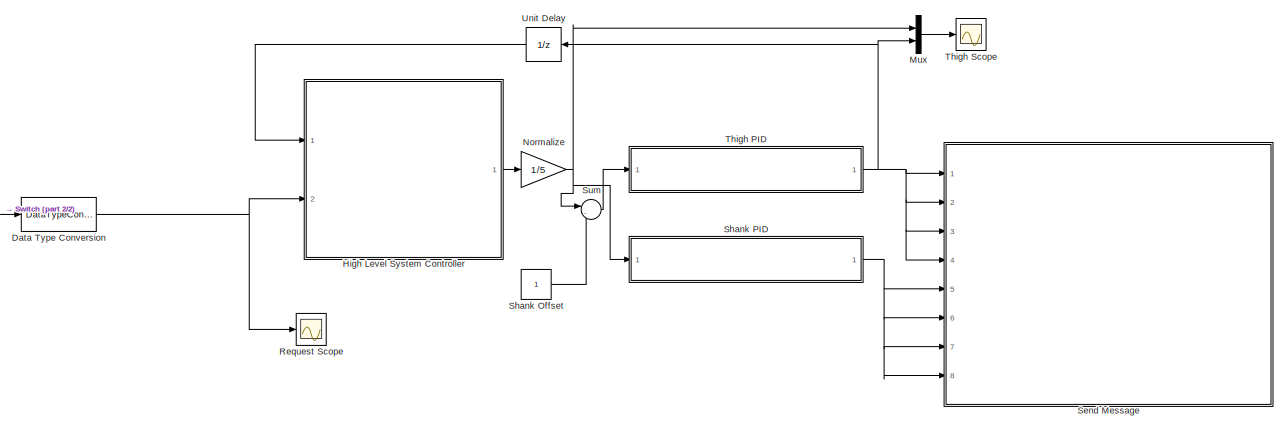
[diagram: root canvas - part 1/2, most of the canvas]
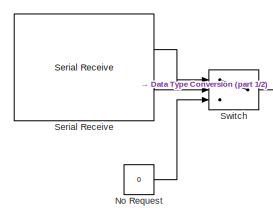
[diagram: root canvas - part 2/2, middle left region]
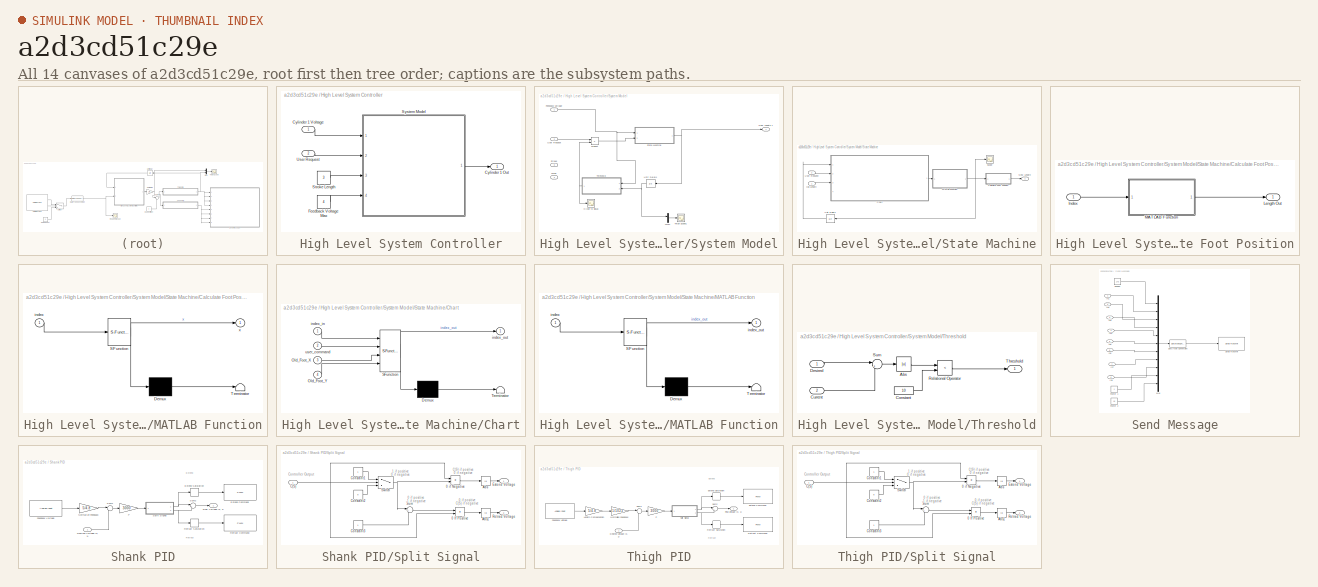
[diagram: thumbnail index - all 14 canvases of the model, root first then tree order]
MODEL slx_a2d3cd51c29e
KIND model
BLOCK [DataTypeConversion] Data Type Conversion
  RndMeth = Floor
BLOCK [SubSystem] High Level System Controller
  Ports = [2, 1]
  RequestExecContextInheritance = off
BLOCK [Outport] High Level System Controller/Cylinder 1 Out
  IconDisplay = Port number
BLOCK [Inport] High Level System Controller/Cylinder 1 Voltage
  IconDisplay = Port number
  OutDataTypeStr = double
BLOCK [Constant] High Level System Controller/Feedback Voltage Max
  Value = 4
BLOCK [Constant] High Level System Controller/Stroke Length
  Value = 3
BLOCK [SubSystem] High Level System Controller/System Model
  Ports = [4, 1]
  RequestExecContextInheritance = off
BLOCK [Scope] High Level System Controller/System Model/Close to Equal
  Floating = off
  LimitDataPoints = off
  NumInputPorts = 1
  Ports = [1]
  SaveName = ScopeData5
  ShowLegends = off
  TimeRange = 1
  YMax = 2.8
  YMin = 2.53334
  ZoomMode = xonly
BLOCK [Inport] High Level System Controller/System Model/Feedback Voltage
  IconDisplay = Port number
BLOCK [Mux] High Level System Controller/System Model/Mux1
  DisplayOption = bar
  Inputs = 2
  Ports = [2, 1]
BLOCK [Outport] High Level System Controller/System Model/New Length 1
  IconDisplay = Port number
  OutDataTypeStr = double
BLOCK [Product] High Level System Controller/System Model/Product
  InputSameDT = off
  OutDataTypeStr = Inherit: Inherit via internal rule
  Ports = [2, 1]
  RndMeth = Floor
  SaturateOnIntegerOverflow = off
BLOCK [SubSystem] High Level System Controller/System Model/State Machine
  Ports = [2, 1]
  RequestExecContextInheritance = off
BLOCK [SubSystem] High Level System Controller/System Model/State Machine/Calculate Foot Position
  Ports = [1, 1]
  RequestExecContextInheritance = off
BLOCK [Inport] High Level System Controller/System Model/State Machine/Calculate Foot Position/Index
  IconDisplay = Port number
BLOCK [Outport] High Level System Controller/System Model/State Machine/Calculate Foot Position/Length Out
  IconDisplay = Port number
BLOCK [SubSystem] High Level System Controller/System Model/State Machine/Calculate Foot Position/MATLAB Function
  ErrorFcn = Stateflow.Translate.translate
  PermitHierarchicalResolution = ExplicitOnly
  Ports = [1, 1]
  RequestExecContextInheritance = off
  SFBlockType = MATLAB Function
  TreatAsAtomicUnit = on
BLOCK [Demux] High Level System Controller/System Model/State Machine/Calculate Foot Position/MATLAB Function/ Demux 
  Outputs = 1
  Ports = [1, 1]
BLOCK [S-Function] High Level System Controller/System Model/State Machine/Calculate Foot Position/MATLAB Function/ SFunction 
  EnableBusSupport = on
  FunctionName = sf_sfun
  PortCounts = [1 2]
  Ports = [1, 2]
  Tag = Stateflow S-Function DesignShowModel 1
BLOCK [Terminator] High Level System Controller/System Model/State Machine/Calculate Foot Position/MATLAB Function/ Terminator 
BLOCK [Inport] High Level System Controller/System Model/State Machine/Calculate Foot Position/MATLAB Function/index
  IconDisplay = Port number
BLOCK [Outport] High Level System Controller/System Model/State Machine/Calculate Foot Position/MATLAB Function/x
  IconDisplay = Port number
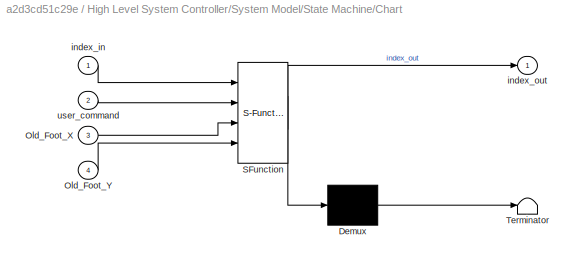
BLOCK [SubSystem] High Level System Controller/System Model/State Machine/Chart
  ErrorFcn = Stateflow.Translate.translate
  PermitHierarchicalResolution = ExplicitOnly
  Ports = [4, 1]
  RequestExecContextInheritance = off
  SFBlockType = Chart
  TreatAsAtomicUnit = on
BLOCK [Demux] High Level System Controller/System Model/State Machine/Chart/ Demux 
  Outputs = 1
  Ports = [1, 1]
BLOCK [S-Function] High Level System Controller/System Model/State Machine/Chart/ SFunction 
  EnableBusSupport = on
  FunctionName = sf_sfun
  PortCounts = [4 2]
  Ports = [4, 2]
  Tag = Stateflow S-Function DesignShowModel 3
BLOCK [Terminator] High Level System Controller/System Model/State Machine/Chart/ Terminator 
BLOCK [Inport] High Level System Controller/System Model/State Machine/Chart/Old_Foot_X
  IconDisplay = Port number
  Port = 3
BLOCK [Inport] High Level System Controller/System Model/State Machine/Chart/Old_Foot_Y
  IconDisplay = Port number
  Port = 4
BLOCK [Inport] High Level System Controller/System Model/State Machine/Chart/index_in
  IconDisplay = Port number
BLOCK [Outport] High Level System Controller/System Model/State Machine/Chart/index_out
  IconDisplay = Port number
BLOCK [Inport] High Level System Controller/System Model/State Machine/Chart/user_command
  IconDisplay = Port number
  Port = 2
BLOCK [SubSystem] High Level System Controller/System Model/State Machine/MATLAB Function
  ErrorFcn = Stateflow.Translate.translate
  PermitHierarchicalResolution = ExplicitOnly
  Ports = [1, 1]
  RequestExecContextInheritance = off
  SFBlockType = MATLAB Function
  TreatAsAtomicUnit = on
BLOCK [Demux] High Level System Controller/System Model/State Machine/MATLAB Function/ Demux 
  Outputs = 1
  Ports = [1, 1]
BLOCK [S-Function] High Level System Controller/System Model/State Machine/MATLAB Function/ SFunction 
  EnableBusSupport = on
  FunctionName = sf_sfun
  PortCounts = [1 2]
  Ports = [1, 2]
  Tag = Stateflow S-Function DesignShowModel 4
BLOCK [Terminator] High Level System Controller/System Model/State Machine/MATLAB Function/ Terminator 
BLOCK [Inport] High Level System Controller/System Model/State Machine/MATLAB Function/index
  IconDisplay = Port number
BLOCK [Outport] High Level System Controller/System Model/State Machine/MATLAB Function/index_out
  IconDisplay = Port number
BLOCK [Outport] High Level System Controller/System Model/State Machine/New Length
  IconDisplay = Port number
BLOCK [Inport] High Level System Controller/System Model/State Machine/Old Length
  IconDisplay = Port number
BLOCK [Scope] High Level System Controller/System Model/State Machine/Scope
  DataFormat = StructureWithTime
  Floating = off
  LimitDataPoints = off
  NumInputPorts = 1
  Ports = [1]
  SampleTime = 0
  SaveName = ScopeData2
  ShowLegends = off
BLOCK [UnitDelay] High Level System Controller/System Model/State Machine/Unit Delay1
  InputProcessing = Elements as channels (sample based)
  SampleTime = -1
BLOCK [Inport] High Level System Controller/System Model/State Machine/User Request
  IconDisplay = Port number
  Port = 2
BLOCK [Inport] High Level System Controller/System Model/Stroke
  IconDisplay = Port number
  Port = 3
BLOCK [Scope] High Level System Controller/System Model/Thigh Scope1
  Floating = off
  LimitDataPoints = off
  NumInputPorts = 1
  Ports = [1]
  SaveName = ScopeData4
  ShowLegends = off
  TimeRange = 1
  YMax = 2.8
  YMin = 2.53334
  ZoomMode = xonly
BLOCK [SubSystem] High Level System Controller/System Model/Threshold
  Ports = [2, 1]
  RequestExecContextInheritance = off
BLOCK [Abs] High Level System Controller/System Model/Threshold/Abs
  SaturateOnIntegerOverflow = off
BLOCK [Constant] High Level System Controller/System Model/Threshold/Constant
  Value = 10
BLOCK [Inport] High Level System Controller/System Model/Threshold/Current
  IconDisplay = Port number
  Port = 2
BLOCK [Inport] High Level System Controller/System Model/Threshold/Desired
  IconDisplay = Port number
BLOCK [RelationalOperator] High Level System Controller/System Model/Threshold/Relational Operator
  InputSameDT = off
  Operator = <
  OutDataTypeStr = boolean
  Ports = [2, 1]
BLOCK [Sum] High Level System Controller/System Model/Threshold/Sum
  IconShape = round
  InputSameDT = off
  Inputs = |+-
  OutDataTypeStr = Inherit: Inherit via internal rule
  Ports = [2, 1]
  SaturateOnIntegerOverflow = off
BLOCK [Outport] High Level System Controller/System Model/Threshold/Threshold
  IconDisplay = Port number
BLOCK [UnitDelay] High Level System Controller/System Model/Unit Delay1
  InputProcessing = Elements as channels (sample based)
  SampleTime = -1
BLOCK [Inport] High Level System Controller/System Model/User Request
  IconDisplay = Port number
  Port = 2
BLOCK [Inport] High Level System Controller/System Model/vMax
  IconDisplay = Port number
  Port = 4
BLOCK [Inport] High Level System Controller/User Request
  IconDisplay = Port number
  Port = 2
BLOCK [Mux] Mux
  DisplayOption = bar
  Inputs = 2
  Ports = [2, 1]
BLOCK [Constant] No Request
  Value = 0
BLOCK [Gain] Normalize
  Gain = 1/5
  OutDataTypeStr = Inherit: Inherit via internal rule
  ParamDataTypeStr = Inherit: Inherit via internal rule
  SaturateOnIntegerOverflow = off
BLOCK [Scope] Request Scope
  Floating = off
  LimitDataPoints = off
  NumInputPorts = 1
  Ports = [1]
  SaveName = ScopeData1
  ShowLegends = off
  TimeRange = 1
  YMax = 1.05
  YMin = 0.95
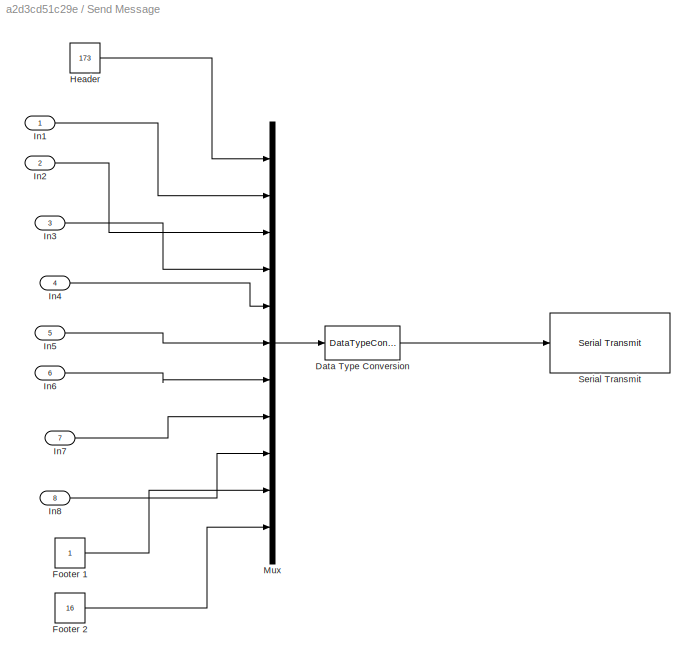
BLOCK [SubSystem] Send Message
  Ports = [8]
  RequestExecContextInheritance = off
BLOCK [DataTypeConversion] Send Message/Data Type Conversion
  RndMeth = Floor
BLOCK [Constant] Send Message/Footer 1
BLOCK [Constant] Send Message/Footer 2
  Value = 16
BLOCK [Constant] Send Message/Header
  Value = 173
BLOCK [Inport] Send Message/In1
  IconDisplay = Port number
BLOCK [Inport] Send Message/In2
  IconDisplay = Port number
  Port = 2
BLOCK [Inport] Send Message/In3
  IconDisplay = Port number
  Port = 3
BLOCK [Inport] Send Message/In4
  IconDisplay = Port number
  Port = 4
BLOCK [Inport] Send Message/In5
  IconDisplay = Port number
  Port = 5
BLOCK [Inport] Send Message/In6
  IconDisplay = Port number
  Port = 6
BLOCK [Inport] Send Message/In7
  IconDisplay = Port number
  Port = 7
BLOCK [Inport] Send Message/In8
  IconDisplay = Port number
  Port = 8
BLOCK [Mux] Send Message/Mux
  DisplayOption = bar
  Inputs = 11
  Ports = [11, 1]
BLOCK [Reference] Send Message/Serial Transmit  REF=arduinolib/Serial Transmit
  Ports = [1]
  SourceBlock = arduinolib/Serial Transmit
  SourceType = Arduino Serial Transmit
  portNumber = 1
BLOCK [Reference] Serial Receive  REF=arduinolib/Serial Receive
  Ports = [0, 2]
  SourceBlock = arduinolib/Serial Receive
  SourceType = Arduino Serial Receive
  portNumber = 1
  sampleTime = .02
  showOutStatus = on
BLOCK [Constant] Shank Offset
BLOCK [SubSystem] Shank PID
  Ports = [1, 1]
  RequestExecContextInheritance = off
BLOCK [Inport] Shank PID/Desired Voltage (0, 1)
  IconDisplay = Port number
BLOCK [Reference] Shank PID/Extend Command  REF=arduinolib/PWM
  Ports = [1]
  SourceBlock = arduinolib/PWM
  SourceType = Arduino PWM
  pinNumber = 9
BLOCK [MinMax] Shank PID/Extend Saturation
  Function = max
  InputSameDT = off
  OutDataTypeStr = int16
  OutMax = [255]
  OutMin = [0]
  Ports = [1, 1]
BLOCK [Reference] Shank PID/Feedback Voltage  REF=arduinolib/Analog Input
  Ports = [0, 1]
  SourceBlock = arduinolib/Analog Input
  SourceType = Arduino Analog Input
  pinNumber = 4
  sampleTime = -1
BLOCK [Outport] Shank PID/Final Voltage (0, 1)
  IconDisplay = Port number
BLOCK [Gain] Shank PID/Normalize Feedback
  Gain = 5/4.8
  OutDataTypeStr = Inherit: Inherit via internal rule
  ParamDataTypeStr = Inherit: Inherit via internal rule
  SaturateOnIntegerOverflow = off
BLOCK [Gain] Shank PID/P
  Gain = 3000
  OutDataTypeStr = Inherit: Inherit via internal rule
  ParamDataTypeStr = Inherit: Inherit via internal rule
  SaturateOnIntegerOverflow = off
BLOCK [Reference] Shank PID/Retract Command  REF=arduinolib/PWM
  Ports = [1]
  SourceBlock = arduinolib/PWM
  SourceType = Arduino PWM
  pinNumber = 11
BLOCK [MinMax] Shank PID/Retract Saturation
  Function = max
  InputSameDT = off
  OutDataTypeStr = int16
  OutMax = [255]
  OutMin = [0]
  Ports = [1, 1]
BLOCK [SubSystem] Shank PID/Split Signal
  Ports = [1, 2]
  RequestExecContextInheritance = off
BLOCK [Product] Shank PID/Split Signal/0 If Positive
  InputSameDT = off
  OutDataTypeStr = Inherit: Inherit via internal rule
  Ports = [2, 1]
  RndMeth = Floor
  SaturateOnIntegerOverflow = off
BLOCK [Product] Shank PID/Split Signal/0 if Negative
  InputSameDT = off
  OutDataTypeStr = Inherit: Inherit via internal rule
  Ports = [2, 1]
  RndMeth = Floor
  SaturateOnIntegerOverflow = off
BLOCK [Abs] Shank PID/Split Signal/Abs
  SaturateOnIntegerOverflow = off
BLOCK [Abs] Shank PID/Split Signal/Abs1
  SaturateOnIntegerOverflow = off
BLOCK [Inport] Shank PID/Split Signal/C(S)
  IconDisplay = Port number
BLOCK [Constant] Shank PID/Split Signal/Constant1
BLOCK [Constant] Shank PID/Split Signal/Constant2
  Value = 0
BLOCK [Constant] Shank PID/Split Signal/Constant3
BLOCK [Outport] Shank PID/Split Signal/Extend Voltage
  IconDisplay = Port number
BLOCK [Outport] Shank PID/Split Signal/Retract Voltage
  IconDisplay = Port number
  Port = 2
BLOCK [Sum] Shank PID/Split Signal/Sum
  IconShape = round
  InputSameDT = off
  Inputs = |+-
  OutDataTypeStr = Inherit: Inherit via internal rule
  Ports = [2, 1]
  SaturateOnIntegerOverflow = off
BLOCK [Switch] Shank PID/Split Signal/Switch
  InputSameDT = off
  SaturateOnIntegerOverflow = off
BLOCK [Sum] Shank PID/Sum1
  IconShape = round
  InputSameDT = off
  Inputs = |-+
  OutDataTypeStr = Inherit: Inherit via internal rule
  Ports = [2, 1]
  SaturateOnIntegerOverflow = off
BLOCK [Sum] Shank PID/Sum2
  IconShape = round
  InputSameDT = off
  Inputs = |++
  OutDataTypeStr = Inherit: Inherit via internal rule
  Ports = [2, 1]
  SaturateOnIntegerOverflow = off
BLOCK [Sum] Sum
  IconShape = round
  InputSameDT = off
  Inputs = |-+
  OutDataTypeStr = Inherit: Inherit via internal rule
  Ports = [2, 1]
  SaturateOnIntegerOverflow = off
BLOCK [Switch] Switch
  Criteria = u2 > Threshold
  InputSameDT = off
  SaturateOnIntegerOverflow = off
BLOCK [SubSystem] Thigh PID
  Ports = [1, 1]
  RequestExecContextInheritance = off
BLOCK [Inport] Thigh PID/Desired Voltage (0, 1)
  IconDisplay = Port number
BLOCK [Reference] Thigh PID/Extend Command  REF=arduinolib/PWM
  Ports = [1]
  SourceBlock = arduinolib/PWM
  SourceType = Arduino PWM
  pinNumber = 5
BLOCK [MinMax] Thigh PID/Extend Saturation
  Function = max
  InputSameDT = off
  OutDataTypeStr = int16
  OutMax = [255]
  OutMin = [0]
  Ports = [1, 1]
BLOCK [Reference] Thigh PID/Feedback Voltage  REF=arduinolib/Analog Input
  Ports = [0, 1]
  SourceBlock = arduinolib/Analog Input
  SourceType = Arduino Analog Input
  pinNumber = 2
  sampleTime = -1
BLOCK [Outport] Thigh PID/Final Voltage (0, 1)
  IconDisplay = Port number
BLOCK [Gain] Thigh PID/Length Compensation
  Gain = 5/4.8
  OutDataTypeStr = Inherit: Inherit via internal rule
  ParamDataTypeStr = Inherit: Inherit via internal rule
  SaturateOnIntegerOverflow = off
BLOCK [Gain] Thigh PID/Normalize Feedback
  Gain = 1/1023
  OutDataTypeStr = Inherit: Inherit via internal rule
  ParamDataTypeStr = Inherit: Inherit via internal rule
  SaturateOnIntegerOverflow = off
BLOCK [Gain] Thigh PID/P
  Gain = 3000
  OutDataTypeStr = Inherit: Inherit via internal rule
  ParamDataTypeStr = Inherit: Inherit via internal rule
  SaturateOnIntegerOverflow = off
BLOCK [Reference] Thigh PID/Retract Command  REF=arduinolib/PWM
  Ports = [1]
  SourceBlock = arduinolib/PWM
  SourceType = Arduino PWM
  pinNumber = 7
BLOCK [MinMax] Thigh PID/Retract Saturation
  Function = max
  InputSameDT = off
  OutDataTypeStr = int16
  OutMax = [255]
  OutMin = [0]
  Ports = [1, 1]
BLOCK [SubSystem] Thigh PID/Split Signal
  Ports = [1, 2]
  RequestExecContextInheritance = off
BLOCK [Product] Thigh PID/Split Signal/0 If Positive
  InputSameDT = off
  OutDataTypeStr = Inherit: Inherit via internal rule
  Ports = [2, 1]
  RndMeth = Floor
  SaturateOnIntegerOverflow = off
BLOCK [Product] Thigh PID/Split Signal/0 if Negative
  InputSameDT = off
  OutDataTypeStr = Inherit: Inherit via internal rule
  Ports = [2, 1]
  RndMeth = Floor
  SaturateOnIntegerOverflow = off
BLOCK [Abs] Thigh PID/Split Signal/Abs
  SaturateOnIntegerOverflow = off
BLOCK [Abs] Thigh PID/Split Signal/Abs1
  SaturateOnIntegerOverflow = off
BLOCK [Inport] Thigh PID/Split Signal/C(S)
  IconDisplay = Port number
BLOCK [Constant] Thigh PID/Split Signal/Constant1
BLOCK [Constant] Thigh PID/Split Signal/Constant2
  Value = 0
BLOCK [Constant] Thigh PID/Split Signal/Constant3
BLOCK [Outport] Thigh PID/Split Signal/Extend Voltage
  IconDisplay = Port number
BLOCK [Outport] Thigh PID/Split Signal/Retract Voltage
  IconDisplay = Port number
  Port = 2
BLOCK [Sum] Thigh PID/Split Signal/Sum
  IconShape = round
  InputSameDT = off
  Inputs = |+-
  OutDataTypeStr = Inherit: Inherit via internal rule
  Ports = [2, 1]
  SaturateOnIntegerOverflow = off
BLOCK [Switch] Thigh PID/Split Signal/Switch
  InputSameDT = off
  SaturateOnIntegerOverflow = off
BLOCK [Sum] Thigh PID/Sum1
  IconShape = round
  InputSameDT = off
  Inputs = |-+
  OutDataTypeStr = Inherit: Inherit via internal rule
  Ports = [2, 1]
  SaturateOnIntegerOverflow = off
BLOCK [Sum] Thigh PID/Sum2
  IconShape = round
  InputSameDT = off
  Inputs = |++
  OutDataTypeStr = Inherit: Inherit via internal rule
  Ports = [2, 1]
  SaturateOnIntegerOverflow = off
BLOCK [Scope] Thigh Scope
  Floating = off
  LimitDataPoints = off
  NumInputPorts = 1
  Ports = [1]
  ShowLegends = off
  TimeRange = 1
  YMax = 2
  YMin = 1.88
  ZoomMode = xonly
BLOCK [UnitDelay] Unit Delay
  InputProcessing = Elements as channels (sample based)
  SampleTime = -1
ANNOTATION Shank PID: Extend
ANNOTATION Shank PID: Retract
ANNOTATION Shank PID/Split Signal: 0 if positive -1 if negative
ANNOTATION Shank PID/Split Signal: 0 if positive C(S) if negative
ANNOTATION Shank PID/Split Signal: 1 if positive 0 if negative
ANNOTATION Shank PID/Split Signal: C(S) if positive 0 if negative
ANNOTATION Shank PID/Split Signal: Controller Output
ANNOTATION Thigh PID: Extend
ANNOTATION Thigh PID: Retract
ANNOTATION Thigh PID/Split Signal: 0 if positive -1 if negative
ANNOTATION Thigh PID/Split Signal: 0 if positive C(S) if negative
ANNOTATION Thigh PID/Split Signal: 1 if positive 0 if negative
ANNOTATION Thigh PID/Split Signal: C(S) if positive 0 if negative
ANNOTATION Thigh PID/Split Signal: Controller Output
NET Data Type Conversion:1 -> High Level System Controller:2, Request Scope:1
LINE High Level System Controller/Cylinder 1 Voltage:1 -> High Level System Controller/System Model:1
LINE High Level System Controller/Feedback Voltage Max:1 -> High Level System Controller/System Model:4
LINE High Level System Controller/Stroke Length:1 -> High Level System Controller/System Model:3
NET High Level System Controller/System Model/Feedback Voltage:1 -> High Level System Controller/System Model/State Machine:1, High Level System Controller/System Model/Threshold:1
LINE High Level System Controller/System Model/Mux1:1 -> High Level System Controller/System Model/Thigh Scope1:1
LINE High Level System Controller/System Model/Product:1 -> High Level System Controller/System Model/State Machine:2
LINE High Level System Controller/System Model/State Machine/Calculate Foot Position/Index:1 -> High Level System Controller/System Model/State Machine/Calculate Foot Position/MATLAB Function:1
LINE High Level System Controller/System Model/State Machine/Calculate Foot Position/MATLAB Function:1 -> High Level System Controller/System Model/State Machine/Calculate Foot Position/Length Out:1
LINE High Level System Controller/System Model/State Machine/Calculate Foot Position:1 -> High Level System Controller/System Model/State Machine/New Length:1
LINE High Level System Controller/System Model/State Machine/Chart:1 -> High Level System Controller/System Model/State Machine/MATLAB Function:1
NET High Level System Controller/System Model/State Machine/MATLAB Function:1 -> High Level System Controller/System Model/State Machine/Calculate Foot Position:1, High Level System Controller/System Model/State Machine/Scope:1, High Level System Controller/System Model/State Machine/Unit Delay1:1
LINE High Level System Controller/System Model/State Machine/Old Length:1 -> High Level System Controller/System Model/State Machine/Chart:3
LINE High Level System Controller/System Model/State Machine/Unit Delay1:1 -> High Level System Controller/System Model/State Machine/Chart:1
LINE High Level System Controller/System Model/State Machine/User Request:1 -> High Level System Controller/System Model/State Machine/Chart:2
NET High Level System Controller/System Model/State Machine:1 -> High Level System Controller/System Model/New Length 1:1, High Level System Controller/System Model/Unit Delay1:1
LINE High Level System Controller/System Model/Threshold/Abs:1 -> High Level System Controller/System Model/Threshold/Relational Operator:1
LINE High Level System Controller/System Model/Threshold/Constant:1 -> High Level System Controller/System Model/Threshold/Relational Operator:2
LINE High Level System Controller/System Model/Threshold/Current:1 -> High Level System Controller/System Model/Threshold/Sum:2
LINE High Level System Controller/System Model/Threshold/Desired:1 -> High Level System Controller/System Model/Threshold/Sum:1
LINE High Level System Controller/System Model/Threshold/Relational Operator:1 -> High Level System Controller/System Model/Threshold/Threshold:1
LINE High Level System Controller/System Model/Threshold/Sum:1 -> High Level System Controller/System Model/Threshold/Abs:1
NET High Level System Controller/System Model/Threshold:1 -> High Level System Controller/System Model/Close to Equal:1, High Level System Controller/System Model/Product:2
NET High Level System Controller/System Model/Unit Delay1:1 -> High Level System Controller/System Model/Mux1:1, High Level System Controller/System Model/Threshold:2
LINE High Level System Controller/System Model/User Request:1 -> High Level System Controller/System Model/Product:1
LINE High Level System Controller/System Model:1 -> High Level System Controller/Cylinder 1 Out:1
LINE High Level System Controller/User Request:1 -> High Level System Controller/System Model:2
LINE High Level System Controller:1 -> Normalize:1
LINE Mux:1 -> Thigh Scope:1
LINE No Request:1 -> Switch:3
NET Normalize:1 -> Mux:1, Shank PID:1, Sum:1
LINE Send Message/Data Type Conversion:1 -> Send Message/Serial Transmit:1
LINE Send Message/Footer 1:1 -> Send Message/Mux:10
LINE Send Message/Footer 2:1 -> Send Message/Mux:11
LINE Send Message/Header:1 -> Send Message/Mux:1
LINE Send Message/In1:1 -> Send Message/Mux:2
LINE Send Message/In2:1 -> Send Message/Mux:3
LINE Send Message/In3:1 -> Send Message/Mux:4
LINE Send Message/In4:1 -> Send Message/Mux:5
LINE Send Message/In5:1 -> Send Message/Mux:6
LINE Send Message/In6:1 -> Send Message/Mux:7
LINE Send Message/In7:1 -> Send Message/Mux:8
LINE Send Message/In8:1 -> Send Message/Mux:9
LINE Send Message/Mux:1 -> Send Message/Data Type Conversion:1
LINE Serial Receive:1 -> Switch:1
LINE Serial Receive:2 -> Switch:2
LINE Shank Offset:1 -> Sum:2
LINE Shank PID/Desired Voltage (0, 1):1 -> Shank PID/Sum1:2
LINE Shank PID/Extend Saturation:1 -> Shank PID/Extend Command:1
LINE Shank PID/Feedback Voltage:1 -> Shank PID/Normalize Feedback:1
LINE Shank PID/Normalize Feedback:1 -> Shank PID/Sum1:1
LINE Shank PID/P:1 -> Shank PID/Split Signal:1
LINE Shank PID/Retract Saturation:1 -> Shank PID/Retract Command:1
LINE Shank PID/Split Signal/0 If Positive:1 -> Shank PID/Split Signal/Abs1:1
LINE Shank PID/Split Signal/0 if Negative:1 -> Shank PID/Split Signal/Abs:1
LINE Shank PID/Split Signal/Abs1:1 -> Shank PID/Split Signal/Retract Voltage:1
LINE Shank PID/Split Signal/Abs:1 -> Shank PID/Split Signal/Extend Voltage:1
NET Shank PID/Split Signal/C(S):1 -> Shank PID/Split Signal/0 If Positive:2, Shank PID/Split Signal/0 if Negative:1, Shank PID/Split Signal/Switch:2
LINE Shank PID/Split Signal/Constant1:1 -> Shank PID/Split Signal/Switch:1
LINE Shank PID/Split Signal/Constant2:1 -> Shank PID/Split Signal/Switch:3
LINE Shank PID/Split Signal/Constant3:1 -> Shank PID/Split Signal/Sum:2
LINE Shank PID/Split Signal/Sum:1 -> Shank PID/Split Signal/0 If Positive:1
NET Shank PID/Split Signal/Switch:1 -> Shank PID/Split Signal/0 if Negative:2, Shank PID/Split Signal/Sum:1
NET Shank PID/Split Signal:1 -> Shank PID/Extend Saturation:1, Shank PID/Sum2:1
NET Shank PID/Split Signal:2 -> Shank PID/Retract Saturation:1, Shank PID/Sum2:2
LINE Shank PID/Sum1:1 -> Shank PID/P:1
LINE Shank PID/Sum2:1 -> Shank PID/Final Voltage (0, 1):1
NET Shank PID:1 -> Send Message:5, Send Message:6, Send Message:7, Send Message:8
LINE Sum:1 -> Thigh PID:1
LINE Switch:1 -> Data Type Conversion:1
LINE Thigh PID/Desired Voltage (0, 1):1 -> Thigh PID/Sum1:2
LINE Thigh PID/Extend Saturation:1 -> Thigh PID/Extend Command:1
LINE Thigh PID/Feedback Voltage:1 -> Thigh PID/Length Compensation:1
LINE Thigh PID/Length Compensation:1 -> Thigh PID/Normalize Feedback:1
LINE Thigh PID/Normalize Feedback:1 -> Thigh PID/Sum1:1
LINE Thigh PID/P:1 -> Thigh PID/Split Signal:1
LINE Thigh PID/Retract Saturation:1 -> Thigh PID/Retract Command:1
LINE Thigh PID/Split Signal/0 If Positive:1 -> Thigh PID/Split Signal/Abs1:1
LINE Thigh PID/Split Signal/0 if Negative:1 -> Thigh PID/Split Signal/Abs:1
LINE Thigh PID/Split Signal/Abs1:1 -> Thigh PID/Split Signal/Retract Voltage:1
LINE Thigh PID/Split Signal/Abs:1 -> Thigh PID/Split Signal/Extend Voltage:1
NET Thigh PID/Split Signal/C(S):1 -> Thigh PID/Split Signal/0 If Positive:2, Thigh PID/Split Signal/0 if Negative:1, Thigh PID/Split Signal/Switch:2
LINE Thigh PID/Split Signal/Constant1:1 -> Thigh PID/Split Signal/Switch:1
LINE Thigh PID/Split Signal/Constant2:1 -> Thigh PID/Split Signal/Switch:3
LINE Thigh PID/Split Signal/Constant3:1 -> Thigh PID/Split Signal/Sum:2
LINE Thigh PID/Split Signal/Sum:1 -> Thigh PID/Split Signal/0 If Positive:1
NET Thigh PID/Split Signal/Switch:1 -> Thigh PID/Split Signal/0 if Negative:2, Thigh PID/Split Signal/Sum:1
NET Thigh PID/Split Signal:1 -> Thigh PID/Extend Saturation:1, Thigh PID/Sum2:1
NET Thigh PID/Split Signal:2 -> Thigh PID/Retract Saturation:1, Thigh PID/Sum2:2
LINE Thigh PID/Sum1:1 -> Thigh PID/P:1
LINE Thigh PID/Sum2:1 -> Thigh PID/Final Voltage (0, 1):1
NET Thigh PID:1 -> Mux:2, Send Message:1, Send Message:2, Send Message:3, Send Message:4, Unit Delay:1
LINE Unit Delay:1 -> High Level System Controller:1
note: NET lines group one-source signal fan-out (src -> all destinations, sorted); 1:1 wires keep LINE
